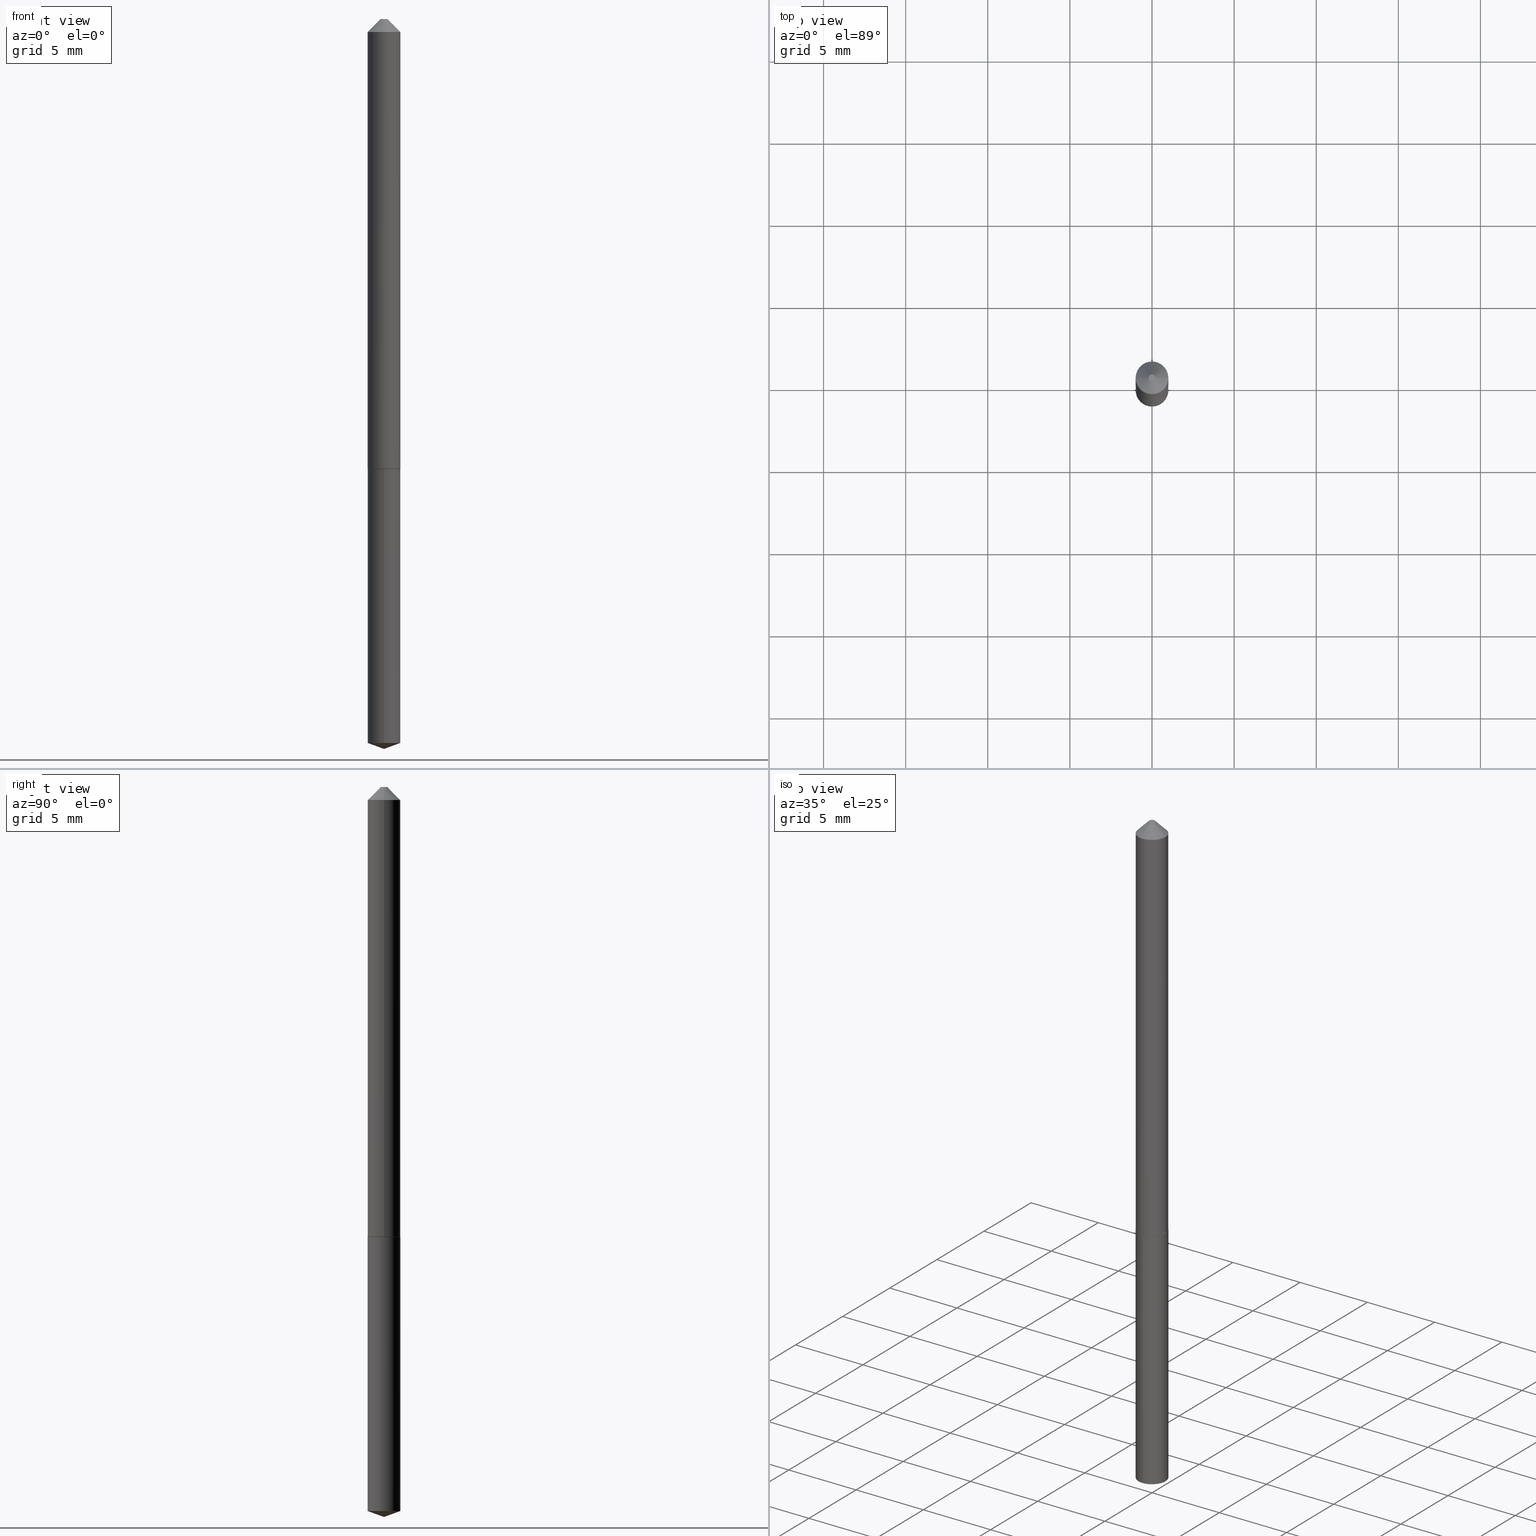
[diagram: canonical four-view strip — front | top / right | iso, engineering-drawing reading convention]
A machine part, canonical four-view strip (front | top / right | iso — engineering-drawing reading convention). The complete STEP part file that produces these views, byte-faithful:
ISO-10303-21;
HEADER;
FILE_DESCRIPTION (( 'STEP AP203' ),
    '1' );
FILE_NAME ('56256.STEP',
    '2024-04-22T21:34:05',
    ( '' ),
    ( '' ),
    'SwSTEP 2.0',
    'SolidWorks 2023',
    '' );
FILE_SCHEMA (( 'CONFIG_CONTROL_DESIGN' ));
ENDSEC;

DATA;
#1 = DIRECTION ( 'NONE',  ( -2.445483709436651737E-29, 3.491459996538735654E-15, 1.000000000000000000 ) ) ;
#2 = ORIENTED_EDGE ( 'NONE', *, *, #13, .F. ) ;
#3 = EDGE_LOOP ( 'NONE', ( #8, #131, #60, #136 ) ) ;
#4 = EDGE_CURVE ( 'NONE', #39, #163, #63, .T. ) ;
#5 = DIRECTION ( 'NONE',  ( 1.000000000000000000, -6.982962677686266711E-15, 4.876176775795935232E-29 ) ) ;
#6 = DIRECTION ( 'NONE',  ( -0.7071067811866441621, 7.493145998870704414E-15, 0.7071067811864508723 ) ) ;
#7 = ADVANCED_FACE ( 'NONE', ( #259 ), #76, .T. ) ;
#8 = ORIENTED_EDGE ( 'NONE', *, *, #168, .F. ) ;
#9 = AXIS2_PLACEMENT_3D ( 'NONE', #319, #384, #83 ) ;
#10 = CARTESIAN_POINT ( 'NONE',  ( 4.279596773399363375E-29, -6.110054993942786605E-15, -1.750000000000000000 ) ) ;
#11 = FACE_OUTER_BOUND ( 'NONE', #66, .T. ) ;
#12 =( NAMED_UNIT ( * ) PLANE_ANGLE_UNIT ( ) SI_UNIT ( $, .RADIAN. ) );
#13 = EDGE_CURVE ( 'NONE', #279, #137, #253, .T. ) ;
#14 = DIRECTION ( 'NONE',  ( 1.000000000000000000, -6.982962677686266711E-15, 4.876357825096174133E-29 ) ) ;
#15 = FACE_OUTER_BOUND ( 'NONE', #109, .T. ) ;
#16 = ORIENTED_EDGE ( 'NONE', *, *, #341, .T. ) ;
#17 = DIRECTION ( 'NONE',  ( -2.445468806185136597E-29, 3.491481338843145583E-15, 1.000000000000000000 ) ) ;
#18 = FACE_OUTER_BOUND ( 'NONE', #114, .T. ) ;
#19 =( NAMED_UNIT ( * ) SI_UNIT ( $, .STERADIAN. ) SOLID_ANGLE_UNIT ( ) );
#20 = DATE_TIME_ROLE ( 'creation_date' ) ;
#21 = ADVANCED_FACE ( 'NONE', ( #291 ), #251, .T. ) ;
#22 = LINE ( 'NONE', #267, #371 ) ;
#23 = COORDINATED_UNIVERSAL_TIME_OFFSET ( 5, 0, .BEHIND. ) ;
#24 = CARTESIAN_POINT ( 'NONE',  ( 2.788880237858818240E-16, 0.03924999999999623235, -1.078500000000000014 ) ) ;
#25 = APPROVAL_PERSON_ORGANIZATION ( #179, #141, #62 ) ;
#26 = ORIENTED_EDGE ( 'NONE', *, *, #152, .T. ) ;
#27 = EDGE_CURVE ( 'NONE', #237, #279, #213, .T. ) ;
#28 = FACE_OUTER_BOUND ( 'NONE', #38, .T. ) ;
#29 = PERSON_AND_ORGANIZATION_ROLE ( 'creator' ) ;
#30 = DIRECTION ( 'NONE',  ( -2.445483709436651737E-29, 3.491459996538735654E-15, 1.000000000000000000 ) ) ;
#31 = PERSON_AND_ORGANIZATION ( #187, #262 ) ;
#32 = ORIENTED_EDGE ( 'NONE', *, *, #168, .T. ) ;
#33 = EDGE_CURVE ( 'NONE', #279, #237, #160, .T. ) ;
#34 = EDGE_LOOP ( 'NONE', ( #255, #245 ) ) ;
#35 = EDGE_LOOP ( 'NONE', ( #316, #133, #159 ) ) ;
#36 = EDGE_CURVE ( 'NONE', #147, #69, #138, .T. ) ;
#37 = ADVANCED_BREP_SHAPE_REPRESENTATION ( '56256', ( #342, #166, #217 ), #377 ) ;
#38 = EDGE_LOOP ( 'NONE', ( #302, #264, #26, #367 ) ) ;
#39 = VERTEX_POINT ( 'NONE', #44 ) ;
#40 = CARTESIAN_POINT ( 'NONE',  ( 2.636215373067577193E-29, -3.763816883272910789E-15, -1.077999999999999847 ) ) ;
#41 = DIRECTION ( 'NONE',  ( 1.000000000000000000, -6.982962677686265922E-15, 4.876176775795935793E-29 ) ) ;
#42 = LENGTH_MEASURE_WITH_UNIT ( LENGTH_MEASURE( 0.02539999999999999897 ), #110 );
#43 = EDGE_CURVE ( 'NONE', #309, #260, #224, .T. ) ;
#44 = CARTESIAN_POINT ( 'NONE',  ( 4.279596491514139628E-29, -6.110054993942786605E-15, -1.750000000000000000 ) ) ;
#45 = ORIENTED_EDGE ( 'NONE', *, *, #33, .F. ) ;
#46 = AXIS2_PLACEMENT_3D ( 'NONE', #307, #169, #145 ) ;
#47 = CIRCLE ( 'NONE', #278, 0.03925000000000000017 ) ;
#48 = CARTESIAN_POINT ( 'NONE',  ( 2.788880237858818240E-16, 0.03924999999999394251, -1.735714168305051652 ) ) ;
#49 = ADVANCED_FACE ( 'NONE', ( #282 ), #380, .F. ) ;
#50 = CARTESIAN_POINT ( 'NONE',  ( 4.244644649671631606E-29, -6.060199601737895499E-15, -1.735714168305051652 ) ) ;
#51 = APPROVAL_ROLE ( '' ) ;
#52 = FACE_OUTER_BOUND ( 'NONE', #107, .T. ) ;
#53 = AXIS2_PLACEMENT_3D ( 'NONE', #272, #303, #386 ) ;
#54 = FACE_OUTER_BOUND ( 'NONE', #35, .T. ) ;
#55 = CIRCLE ( 'NONE', #353, 0.03875000000000009687 ) ;
#56 = DIRECTION ( 'NONE',  ( 1.000000000000000000, 0.000000000000000000, 0.000000000000000000 ) ) ;
#57 = CARTESIAN_POINT ( 'NONE',  ( 0.03925000000000013201, -4.037898168372097104E-15, -1.077999999999999847 ) ) ;
#58 = LINE ( 'NONE', #84, #305 ) ;
#59 = DATE_AND_TIME ( #328, #104 ) ;
#60 = ORIENTED_EDGE ( 'NONE', *, *, #212, .T. ) ;
#61 = CIRCLE ( 'NONE', #153, 0.03925000000000000017 ) ;
#62 = APPROVAL_ROLE ( '' ) ;
#63 = LINE ( 'NONE', #10, #205 ) ;
#64 = APPROVAL_DATE_TIME ( #339, #141 ) ;
#65 = AXIS2_PLACEMENT_3D ( 'NONE', #194, #246, #75 ) ;
#66 = EDGE_LOOP ( 'NONE', ( #180, #195, #344, #146 ) ) ;
#67 = ORIENTED_EDGE ( 'NONE', *, *, #135, .F. ) ;
#68 = DIRECTION ( 'NONE',  ( -2.445468806185136597E-29, 3.491481338843145583E-15, 1.000000000000000000 ) ) ;
#69 = VERTEX_POINT ( 'NONE', #202 ) ;
#70 = CARTESIAN_POINT ( 'NONE',  ( 3.743544432386673062E-48, -5.344789307371237567E-34, -1.530808498934197508E-19 ) ) ;
#71 = ADVANCED_FACE ( 'NONE', ( #11 ), #362, .T. ) ;
#72 = CONICAL_SURFACE ( 'NONE', #298, 0.03925000000000000017, 0.7853981633974450594 ) ;
#73 = CC_DESIGN_APPROVAL ( #141, ( #199 ) ) ;
#74 = DIRECTION ( 'NONE',  ( 1.000000000000000000, -6.982962677686266711E-15, 0.000000000000000000 ) ) ;
#75 = DIRECTION ( 'NONE',  ( -1.000000000000000000, 6.982962677686265922E-15, -4.876176775795935793E-29 ) ) ;
#76 = CYLINDRICAL_SURFACE ( 'NONE', #221, 0.03925000000000000017 ) ;
#77 = CC_DESIGN_DATE_AND_TIME_ASSIGNMENT ( #150, #92, ( #199 ) ) ;
#78 = DIRECTION ( 'NONE',  ( -1.000000000000000000, 6.982962677686266711E-15, 0.000000000000000000 ) ) ;
#79 = CLOSED_SHELL ( 'NONE', ( #258, #95, #71, #49, #21, #266, #184, #346 ) ) ;
#80 = AXIS2_PLACEMENT_3D ( 'NONE', #269, #1, #236 ) ;
#81 = LOCAL_TIME ( 17, 34, 5.000000000000000000, #132 ) ;
#82 = CYLINDRICAL_SURFACE ( 'NONE', #80, 0.03925000000000000017 ) ;
#83 = DIRECTION ( 'NONE',  ( -6.982962677686266711E-15, -1.000000000000000000, 3.475157955500665783E-15 ) ) ;
#84 = CARTESIAN_POINT ( 'NONE',  ( 2.788880237858656524E-16, 0.03924999999999623235, -1.078500000000000014 ) ) ;
#85 = PERSON_AND_ORGANIZATION ( #187, #262 ) ;
#86 = DIRECTION ( 'NONE',  ( -2.445468806185136597E-29, 3.491481338843145583E-15, 1.000000000000000000 ) ) ;
#87 = SECURITY_CLASSIFICATION_LEVEL ( 'unclassified' ) ;
#88 = ADVANCED_FACE ( 'NONE', ( #118 ), #283, .T. ) ;
#89 = AXIS2_PLACEMENT_3D ( 'NONE', #70, #265, #14 ) ;
#90 = DIRECTION ( 'NONE',  ( 1.000000000000000000, -6.982962677686271444E-15, 0.000000000000000000 ) ) ;
#91 = PRODUCT_DEFINITION_FORMATION_WITH_SPECIFIED_SOURCE ( 'ANY', '', #372, .NOT_KNOWN. ) ;
#92 = DATE_TIME_ROLE ( 'classification_date' ) ;
#93 = APPROVAL_ROLE ( '' ) ;
#94 = ORIENTED_EDGE ( 'NONE', *, *, #13, .T. ) ;
#95 = ADVANCED_FACE ( 'NONE', ( #144 ), #376, .T. ) ;
#96 = ORIENTED_EDGE ( 'NONE', *, *, #389, .T. ) ;
#97 = CIRCLE ( 'NONE', #53, 0.03925000000000013201 ) ;
#98 = APPROVAL_PERSON_ORGANIZATION ( #209, #127, #51 ) ;
#99 = EDGE_CURVE ( 'NONE', #151, #137, #336, .T. ) ;
#100 = CARTESIAN_POINT ( 'NONE',  ( -0.03925000000000013201, -3.484928859487070232E-15, -1.077999999999999847 ) ) ;
#101 = EDGE_LOOP ( 'NONE', ( #231, #161, #105 ) ) ;
#102 = VERTEX_POINT ( 'NONE', #100 ) ;
#103 = DIRECTION ( 'NONE',  ( -2.445468806185136597E-29, 3.491481338843145583E-15, 1.000000000000000000 ) ) ;
#104 = LOCAL_TIME ( 17, 34, 5.000000000000000000, #273 ) ;
#105 = ORIENTED_EDGE ( 'NONE', *, *, #327, .F. ) ;
#106 = PRODUCT_DEFINITION_SHAPE ( 'NONE', 'NONE',  #357 ) ;
#107 = EDGE_LOOP ( 'NONE', ( #45, #94, #96, #335 ) ) ;
#108 = APPLICATION_PROTOCOL_DEFINITION ( 'international standard', 'config_control_design', 1994, #188 ) ;
#109 = EDGE_LOOP ( 'NONE', ( #340, #140 ) ) ;
#110 =( LENGTH_UNIT ( ) NAMED_UNIT ( * ) SI_UNIT ( $, .METRE. ) );
#111 = DIRECTION ( 'NONE',  ( 1.000000000000000000, -6.982962677686265922E-15, 0.000000000000000000 ) ) ;
#112 =( CONVERSION_BASED_UNIT ( 'INCH', #42 ) LENGTH_UNIT ( ) NAMED_UNIT ( #374 ) );
#113 = VECTOR ( 'NONE', #203, 39.37007874015748143 ) ;
#114 = EDGE_LOOP ( 'NONE', ( #2, #226, #257, #250 ) ) ;
#115 = DIRECTION ( 'NONE',  ( 0.7071067811865452413, -7.319954787623248157E-15, -0.7071067811865497932 ) ) ;
#116 = LINE ( 'NONE', #348, #235 ) ;
#117 = EDGE_CURVE ( 'NONE', #39, #277, #197, .T. ) ;
#118 = FACE_OUTER_BOUND ( 'NONE', #101, .T. ) ;
#119 = CARTESIAN_POINT ( 'NONE',  ( 7.642090019328601786E-31, -1.091087918388490144E-16, -0.03125000000000020123 ) ) ;
#120 = PERSON_AND_ORGANIZATION ( #187, #262 ) ;
#121 = AXIS2_PLACEMENT_3D ( 'NONE', #378, #175, #320 ) ;
#122 = CIRCLE ( 'NONE', #331, 0.03875000000000009687 ) ;
#123 = CARTESIAN_POINT ( 'NONE',  ( -2.740812850991435691E-16, -0.03925000000000607864, -1.735714168305051430 ) ) ;
#124 = FACE_OUTER_BOUND ( 'NONE', #34, .T. ) ;
#125 = CARTESIAN_POINT ( 'NONE',  ( 0.000000000000000000, 0.000000000000000000, 0.000000000000000000 ) ) ;
#126 = CARTESIAN_POINT ( 'NONE',  ( -0.007999999999999998432, 1.104180973409135397E-16, -1.530808498940009002E-19 ) ) ;
#127 = APPROVAL ( #129, 'UNSPECIFIED' ) ;
#128 = DIRECTION ( 'NONE',  ( -0.7071067811865452413, 2.468850131082233000E-15, -0.7071067811865497932 ) ) ;
#129 = APPROVAL_STATUS ( 'not_yet_approved' ) ;
#130 = LOCAL_TIME ( 17, 34, 5.000000000000000000, #23 ) ;
#131 = ORIENTED_EDGE ( 'NONE', *, *, #192, .T. ) ;
#132 = COORDINATED_UNIVERSAL_TIME_OFFSET ( 5, 0, .BEHIND. ) ;
#133 = ORIENTED_EDGE ( 'NONE', *, *, #117, .T. ) ;
#134 = CARTESIAN_POINT ( 'NONE',  ( 7.642090019328601786E-31, -1.091087918388490144E-16, -0.03125000000000020123 ) ) ;
#135 = EDGE_CURVE ( 'NONE', #69, #147, #287, .T. ) ;
#136 = ORIENTED_EDGE ( 'NONE', *, *, #99, .F. ) ;
#137 = VERTEX_POINT ( 'NONE', #317 ) ;
#138 = CIRCLE ( 'NONE', #46, 0.03925000000000000017 ) ;
#139 = CIRCLE ( 'NONE', #229, 0.03925000000000013201 ) ;
#140 = ORIENTED_EDGE ( 'NONE', *, *, #36, .T. ) ;
#141 = APPROVAL ( #306, 'UNSPECIFIED' ) ;
#142 = DIRECTION ( 'NONE',  ( -6.982962677686264344E-15, -1.000000000000000000, 3.480061138425812861E-15 ) ) ;
#143 = PLANE ( 'NONE',  #365 ) ;
#144 = FACE_OUTER_BOUND ( 'NONE', #247, .T. ) ;
#145 = DIRECTION ( 'NONE',  ( -6.982962677686264344E-15, -1.000000000000000000, 3.480061138425812861E-15 ) ) ;
#146 = ORIENTED_EDGE ( 'NONE', *, *, #43, .F. ) ;
#147 = VERTEX_POINT ( 'NONE', #24 ) ;
#148 = CARTESIAN_POINT ( 'NONE',  ( 0.03925000000000006956, -2.740812850991864634E-16, 1.913899384499908036E-30 ) ) ;
#149 = DIRECTION ( 'NONE',  ( -2.445483709436651456E-29, 3.491459996538735654E-15, 1.000000000000000000 ) ) ;
#150 = DATE_AND_TIME ( #243, #130 ) ;
#151 = VERTEX_POINT ( 'NONE', #381 ) ;
#152 = EDGE_CURVE ( 'NONE', #277, #69, #326, .T. ) ;
#153 = AXIS2_PLACEMENT_3D ( 'NONE', #368, #103, #223 ) ;
#154 = DIRECTION ( 'NONE',  ( -2.445468806185136597E-29, 3.491481338843145583E-15, 1.000000000000000000 ) ) ;
#155 = PERSON_AND_ORGANIZATION_ROLE ( 'creator' ) ;
#156 = DIRECTION ( 'NONE',  ( -2.445468806185136877E-29, 3.491481338843145188E-15, 1.000000000000000000 ) ) ;
#157 = DIRECTION ( 'NONE',  ( -1.000000000000000000, 6.982962677686266711E-15, 0.000000000000000000 ) ) ;
#158 = CC_DESIGN_PERSON_AND_ORGANIZATION_ASSIGNMENT ( #120, #321, ( #199 ) ) ;
#159 = ORIENTED_EDGE ( 'NONE', *, *, #220, .F. ) ;
#160 = CIRCLE ( 'NONE', #204, 0.007999999999999998432 ) ;
#161 = ORIENTED_EDGE ( 'NONE', *, *, #4, .T. ) ;
#162 = PLANE ( 'NONE',  #65 ) ;
#163 = VERTEX_POINT ( 'NONE', #48 ) ;
#164 = CARTESIAN_POINT ( 'NONE',  ( 3.743544432386673062E-48, -5.344789307371237567E-34, -1.530808498934197508E-19 ) ) ;
#165 = AXIS2_PLACEMENT_3D ( 'NONE', #227, #315, #5 ) ;
#166 = MANIFOLD_SOLID_BREP ( 'Body-Move/Copy2[2]', #79 ) ;
#167 = EDGE_LOOP ( 'NONE', ( #281, #196, #355, #343 ) ) ;
#168 = EDGE_CURVE ( 'NONE', #102, #151, #300, .T. ) ;
#169 = DIRECTION ( 'NONE',  ( -2.445483709436651737E-29, 3.491459996538735654E-15, 1.000000000000000000 ) ) ;
#170 = DIRECTION ( 'NONE',  ( -2.445483709436651737E-29, 3.491459996538735654E-15, 1.000000000000000000 ) ) ;
#171 = ORIENTED_EDGE ( 'NONE', *, *, #292, .F. ) ;
#172 = DIRECTION ( 'NONE',  ( -2.445483709436651737E-29, 3.491459996538735654E-15, 1.000000000000000000 ) ) ;
#173 = CARTESIAN_POINT ( 'NONE',  ( 2.637438107470669995E-29, -3.765562623942332293E-15, -1.078500000000000014 ) ) ;
#174 = VECTOR ( 'NONE', #290, 39.37007874015748143 ) ;
#175 = DIRECTION ( 'NONE',  ( -2.445483709436651737E-29, 3.491459996538735654E-15, 1.000000000000000000 ) ) ;
#176 = LINE ( 'NONE', #148, #113 ) ;
#177 = CC_DESIGN_PERSON_AND_ORGANIZATION_ASSIGNMENT ( #31, #268, ( #91 ) ) ;
#178 = CARTESIAN_POINT ( 'NONE',  ( 0.007999999999999998432, -2.166336611167769862E-16, -1.530808498924677396E-19 ) ) ;
#179 = PERSON_AND_ORGANIZATION ( #187, #262 ) ;
#180 = ORIENTED_EDGE ( 'NONE', *, *, #292, .T. ) ;
#181 = AXIS2_PLACEMENT_3D ( 'NONE', #191, #68, #219 ) ;
#182 = DIRECTION ( 'NONE',  ( -6.982962677686264344E-15, -1.000000000000000000, 6.960122276851625723E-15 ) ) ;
#183 = ORIENTED_EDGE ( 'NONE', *, *, #212, .F. ) ;
#184 = ADVANCED_FACE ( 'NONE', ( #18 ), #72, .T. ) ;
#185 = CARTESIAN_POINT ( 'NONE',  ( -2.740812850991594942E-16, -0.03925000000000376105, -1.078499999999999792 ) ) ;
#186 = COORDINATED_UNIVERSAL_TIME_OFFSET ( 5, 0, .BEHIND. ) ;
#187 = PERSON ( 'UNSPECIFIED', 'UNSPECIFIED', 'UNSPECIFIED', ('UNSPECIFIED'), ('UNSPECIFIED'), ('UNSPECIFIED') ) ;
#188 = APPLICATION_CONTEXT ( 'configuration controlled 3d designs of mechanical parts and assemblies' ) ;
#189 = AXIS2_PLACEMENT_3D ( 'NONE', #289, #314, #41 ) ;
#190 = CONICAL_SURFACE ( 'NONE', #9, 108.1684023407351560, 1.221730476396036602 ) ;
#191 = CARTESIAN_POINT ( 'NONE',  ( 2.636215373067577193E-29, -3.763816883272910789E-15, -1.077999999999999847 ) ) ;
#192 = EDGE_CURVE ( 'NONE', #102, #260, #97, .T. ) ;
#193 = CLOSED_SHELL ( 'NONE', ( #7, #88, #322, #304, #364 ) ) ;
#194 = CARTESIAN_POINT ( 'NONE',  ( 1.871772216193336531E-48, -2.672394653685618784E-34, -7.654042494670987541E-20 ) ) ;
#195 = ORIENTED_EDGE ( 'NONE', *, *, #370, .T. ) ;
#196 = ORIENTED_EDGE ( 'NONE', *, *, #312, .T. ) ;
#197 = LINE ( 'NONE', #200, #174 ) ;
#198 = DIRECTION ( 'NONE',  ( 0.7071067811866441621, -2.468850131083269169E-15, 0.7071067811864508723 ) ) ;
#199 = SECURITY_CLASSIFICATION ( '', '', #87 ) ;
#200 = CARTESIAN_POINT ( 'NONE',  ( 4.279564345200622166E-29, -6.110101029293398590E-15, -1.750000000000000000 ) ) ;
#201 = CC_DESIGN_PERSON_AND_ORGANIZATION_ASSIGNMENT ( #85, #155, ( #357 ) ) ;
#202 = CARTESIAN_POINT ( 'NONE',  ( -2.740812850991594942E-16, -0.03925000000000376105, -1.078499999999999792 ) ) ;
#203 = DIRECTION ( 'NONE',  ( -2.445468806185136877E-29, 3.491481338843145188E-15, 1.000000000000000000 ) ) ;
#204 = AXIS2_PLACEMENT_3D ( 'NONE', #164, #17, #288 ) ;
#205 = VECTOR ( 'NONE', #347, 39.37007874015748143 ) ;
#206 = CARTESIAN_POINT ( 'NONE',  ( 2.637438107470669434E-29, -3.765562623942332293E-15, -1.078499999999999792 ) ) ;
#207 = CC_DESIGN_PERSON_AND_ORGANIZATION_ASSIGNMENT ( #301, #240, ( #372 ) ) ;
#208 = CARTESIAN_POINT ( 'NONE',  ( 7.642090019328601786E-31, -1.091087918388490144E-16, -0.03125000000000020123 ) ) ;
#209 = PERSON_AND_ORGANIZATION ( #187, #262 ) ;
#210 = DIRECTION ( 'NONE',  ( 1.000000000000000000, -6.982962677686271444E-15, 0.000000000000000000 ) ) ;
#211 = MECHANICAL_CONTEXT ( 'NONE', #188, 'mechanical' ) ;
#212 = EDGE_CURVE ( 'NONE', #260, #137, #176, .T. ) ;
#213 = CIRCLE ( 'NONE', #89, 0.007999999999999998432 ) ;
#214 = DIRECTION ( 'NONE',  ( -2.445483709436651737E-29, 3.491459996538735654E-15, 1.000000000000000000 ) ) ;
#215 = CALENDAR_DATE ( 2024, 22, 4 ) ;
#216 = VECTOR ( 'NONE', #149, 39.37007874015748143 ) ;
#217 = AXIS2_PLACEMENT_3D ( 'NONE', #125, #358, #56 ) ;
#218 = SHAPE_DEFINITION_REPRESENTATION ( #106, #37 ) ;
#219 = DIRECTION ( 'NONE',  ( 1.000000000000000000, -6.982962677686265922E-15, 0.000000000000000000 ) ) ;
#220 = EDGE_CURVE ( 'NONE', #163, #277, #324, .T. ) ;
#221 = AXIS2_PLACEMENT_3D ( 'NONE', #173, #170, #142 ) ;
#222 = APPROVAL_PERSON_ORGANIZATION ( #390, #334, #93 ) ;
#223 = DIRECTION ( 'NONE',  ( 1.000000000000000000, -6.982962677686266711E-15, 0.000000000000000000 ) ) ;
#224 = LINE ( 'NONE', #373, #351 ) ;
#225 = DIRECTION ( 'NONE',  ( -2.445483709436651456E-29, 3.491459996538735654E-15, 1.000000000000000000 ) ) ;
#226 = ORIENTED_EDGE ( 'NONE', *, *, #27, .F. ) ;
#227 = CARTESIAN_POINT ( 'NONE',  ( 0.000000000000000000, 0.000000000000000000, 0.000000000000000000 ) ) ;
#228 = AXIS2_PLACEMENT_3D ( 'NONE', #333, #172, #332 ) ;
#229 = AXIS2_PLACEMENT_3D ( 'NONE', #352, #154, #233 ) ;
#230 = ORIENTED_EDGE ( 'NONE', *, *, #312, .F. ) ;
#231 = ORIENTED_EDGE ( 'NONE', *, *, #117, .F. ) ;
#232 = CARTESIAN_POINT ( 'NONE',  ( -0.03925000000000006956, 2.788880237858398172E-16, -1.930682022925053676E-30 ) ) ;
#233 = DIRECTION ( 'NONE',  ( 1.000000000000000000, -6.982962677686265922E-15, 0.000000000000000000 ) ) ;
#234 = AXIS2_PLACEMENT_3D ( 'NONE', #134, #345, #74 ) ;
#235 = VECTOR ( 'NONE', #6, 39.37007874015748143 ) ;
#236 = DIRECTION ( 'NONE',  ( -6.982962677686264344E-15, -1.000000000000000000, 3.480061138425812861E-15 ) ) ;
#237 = VERTEX_POINT ( 'NONE', #126 ) ;
#238 = DIRECTION ( 'NONE',  ( 2.445468806185136597E-29, -3.491481338843145583E-15, -1.000000000000000000 ) ) ;
#239 = EDGE_CURVE ( 'NONE', #237, #151, #22, .T. ) ;
#240 = PERSON_AND_ORGANIZATION_ROLE ( 'design_owner' ) ;
#241 = APPLICATION_CONTEXT ( 'configuration controlled 3d designs of mechanical parts and assemblies' ) ;
#242 = DIRECTION ( 'NONE',  ( -2.445468806185136597E-29, 3.491481338843145583E-15, 1.000000000000000000 ) ) ;
#243 = CALENDAR_DATE ( 2024, 22, 4 ) ;
#244 = CALENDAR_DATE ( 2024, 22, 4 ) ;
#245 = ORIENTED_EDGE ( 'NONE', *, *, #33, .T. ) ;
#246 = DIRECTION ( 'NONE',  ( 2.438088387897960049E-29, -3.491481338843145188E-15, -1.000000000000000000 ) ) ;
#247 = EDGE_LOOP ( 'NONE', ( #369, #32, #310, #183 ) ) ;
#248 = PRODUCT_RELATED_PRODUCT_CATEGORY ( 'detail', '', ( #372 ) ) ;
#249 = CALENDAR_DATE ( 2024, 22, 4 ) ;
#250 = ORIENTED_EDGE ( 'NONE', *, *, #99, .T. ) ;
#251 = CONICAL_SURFACE ( 'NONE', #330, 0.03925000000000013201, 0.7853981633975849475 ) ;
#252 = AXIS2_PLACEMENT_3D ( 'NONE', #119, #238, #157 ) ;
#253 = LINE ( 'NONE', #366, #318 ) ;
#254 = ORIENTED_EDGE ( 'NONE', *, *, #327, .T. ) ;
#255 = ORIENTED_EDGE ( 'NONE', *, *, #27, .T. ) ;
#256 = CC_DESIGN_APPROVAL ( #127, ( #91 ) ) ;
#257 = ORIENTED_EDGE ( 'NONE', *, *, #239, .T. ) ;
#258 = ADVANCED_FACE ( 'NONE', ( #52 ), #308, .T. ) ;
#259 = FACE_OUTER_BOUND ( 'NONE', #286, .T. ) ;
#260 = VERTEX_POINT ( 'NONE', #57 ) ;
#261 = DIRECTION ( 'NONE',  ( 2.445483709436651176E-29, -3.491459996538735654E-15, -1.000000000000000000 ) ) ;
#262 = ORGANIZATION ( 'UNSPECIFIED', 'UNSPECIFIED', '' ) ;
#263 = UNCERTAINTY_MEASURE_WITH_UNIT (LENGTH_MEASURE( 1.000000000000000082E-05 ), #112, 'distance_accuracy_value', 'NONE');
#264 = ORIENTED_EDGE ( 'NONE', *, *, #220, .T. ) ;
#265 = DIRECTION ( 'NONE',  ( -2.445468806185136597E-29, 3.491481338843145583E-15, 1.000000000000000000 ) ) ;
#266 = ADVANCED_FACE ( 'NONE', ( #295 ), #276, .T. ) ;
#267 = CARTESIAN_POINT ( 'NONE',  ( -0.03925000000000000017, 1.649724932603369437E-16, -0.03125000000000020123 ) ) ;
#268 = PERSON_AND_ORGANIZATION_ROLE ( 'design_supplier' ) ;
#269 = CARTESIAN_POINT ( 'NONE',  ( 2.637438107470669995E-29, -3.765562623942332293E-15, -1.078500000000000014 ) ) ;
#270 = VECTOR ( 'NONE', #156, 39.37007874015748143 ) ;
#271 = CC_DESIGN_APPROVAL ( #334, ( #357 ) ) ;
#272 = CARTESIAN_POINT ( 'NONE',  ( 2.636215373067577193E-29, -3.763816883272910789E-15, -1.077999999999999847 ) ) ;
#273 = COORDINATED_UNIVERSAL_TIME_OFFSET ( 5, 0, .BEHIND. ) ;
#274 = DIRECTION ( 'NONE',  ( 1.000000000000000000, -6.982962677686266711E-15, 4.876176775795935232E-29 ) ) ;
#275 = EDGE_CURVE ( 'NONE', #260, #102, #139, .T. ) ;
#276 = CYLINDRICAL_SURFACE ( 'NONE', #385, 0.03925000000000006956 ) ;
#277 = VERTEX_POINT ( 'NONE', #123 ) ;
#278 = AXIS2_PLACEMENT_3D ( 'NONE', #50, #214, #182 ) ;
#279 = VERTEX_POINT ( 'NONE', #178 ) ;
#280 = CC_DESIGN_DATE_AND_TIME_ASSIGNMENT ( #59, #20, ( #357 ) ) ;
#281 = ORIENTED_EDGE ( 'NONE', *, *, #370, .F. ) ;
#282 = FACE_OUTER_BOUND ( 'NONE', #375, .T. ) ;
#283 = CONICAL_SURFACE ( 'NONE', #228, 108.1684023407351560, 1.221730476396036602 ) ;
#284 = CC_DESIGN_SECURITY_CLASSIFICATION ( #199, ( #91 ) ) ;
#285 = VERTEX_POINT ( 'NONE', #388 ) ;
#286 = EDGE_LOOP ( 'NONE', ( #254, #16, #67, #329 ) ) ;
#287 = CIRCLE ( 'NONE', #121, 0.03925000000000000017 ) ;
#288 = DIRECTION ( 'NONE',  ( 1.000000000000000000, -6.982962677686266711E-15, 4.876357825096174133E-29 ) ) ;
#289 = CARTESIAN_POINT ( 'NONE',  ( 2.637438107470669995E-29, -3.765562623942332293E-15, -1.078500000000000014 ) ) ;
#290 = DIRECTION ( 'NONE',  ( -6.561838499445214262E-15, -0.9396926207859092051, 0.3420201433256664925 ) ) ;
#291 = FACE_OUTER_BOUND ( 'NONE', #167, .T. ) ;
#292 = EDGE_CURVE ( 'NONE', #309, #285, #122, .T. ) ;
#293 = CARTESIAN_POINT ( 'NONE',  ( 4.244644649671631606E-29, -6.060199601737895499E-15, -1.735714168305051652 ) ) ;
#294 = DATE_AND_TIME ( #215, #313 ) ;
#295 = FACE_OUTER_BOUND ( 'NONE', #3, .T. ) ;
#296 = APPROVAL_DATE_TIME ( #387, #334 ) ;
#297 = CARTESIAN_POINT ( 'NONE',  ( 2.637438107470669434E-29, -3.765562623942332293E-15, -1.078499999999999792 ) ) ;
#298 = AXIS2_PLACEMENT_3D ( 'NONE', #208, #359, #78 ) ;
#299 = LOCAL_TIME ( 17, 34, 5.000000000000000000, #354 ) ;
#300 = LINE ( 'NONE', #232, #270 ) ;
#301 = PERSON_AND_ORGANIZATION ( #187, #262 ) ;
#302 = ORIENTED_EDGE ( 'NONE', *, *, #341, .F. ) ;
#303 = DIRECTION ( 'NONE',  ( -2.445468806185136597E-29, 3.491481338843145583E-15, 1.000000000000000000 ) ) ;
#304 = ADVANCED_FACE ( 'NONE', ( #28 ), #82, .T. ) ;
#305 = VECTOR ( 'NONE', #225, 39.37007874015748143 ) ;
#306 = APPROVAL_STATUS ( 'not_yet_approved' ) ;
#307 = CARTESIAN_POINT ( 'NONE',  ( 2.637438107470669995E-29, -3.765562623942332293E-15, -1.078500000000000014 ) ) ;
#308 = CONICAL_SURFACE ( 'NONE', #252, 0.03925000000000000017, 0.7853981633974450594 ) ;
#309 = VERTEX_POINT ( 'NONE', #323 ) ;
#310 = ORIENTED_EDGE ( 'NONE', *, *, #389, .F. ) ;
#311 = DIRECTION ( 'NONE',  ( -2.445468806185136597E-29, 3.491481338843145583E-15, 1.000000000000000000 ) ) ;
#312 = EDGE_CURVE ( 'NONE', #285, #309, #55, .T. ) ;
#313 = LOCAL_TIME ( 17, 34, 5.000000000000000000, #186 ) ;
#314 = DIRECTION ( 'NONE',  ( -2.438088387897960049E-29, 3.491481338843145188E-15, 1.000000000000000000 ) ) ;
#315 = DIRECTION ( 'NONE',  ( -2.445468806185136597E-29, 3.491481338843145583E-15, 1.000000000000000000 ) ) ;
#316 = ORIENTED_EDGE ( 'NONE', *, *, #4, .F. ) ;
#317 = CARTESIAN_POINT ( 'NONE',  ( 0.03925000000000000017, -3.831900769380349724E-16, -0.03125000000000020123 ) ) ;
#318 = VECTOR ( 'NONE', #115, 39.37007874015748143 ) ;
#319 = CARTESIAN_POINT ( 'NONE',  ( -9.199930577993600191E-28, 1.313489769702218936E-13, 37.62007874015748143 ) ) ;
#320 = DIRECTION ( 'NONE',  ( -6.982962677686264344E-15, -1.000000000000000000, 3.480061138425812861E-15 ) ) ;
#321 = PERSON_AND_ORGANIZATION_ROLE ( 'classification_officer' ) ;
#322 = ADVANCED_FACE ( 'NONE', ( #54 ), #190, .T. ) ;
#323 = CARTESIAN_POINT ( 'NONE',  ( 0.03875000000000009687, -4.036152427702675601E-15, -1.078499999999999792 ) ) ;
#324 = CIRCLE ( 'NONE', #337, 0.03925000000000000017 ) ;
#325 = APPLICATION_PROTOCOL_DEFINITION ( 'international standard', 'config_control_design', 1994, #241 ) ;
#326 = LINE ( 'NONE', #185, #216 ) ;
#327 = EDGE_CURVE ( 'NONE', #277, #163, #47, .T. ) ;
#328 = CALENDAR_DATE ( 2024, 22, 4 ) ;
#329 = ORIENTED_EDGE ( 'NONE', *, *, #152, .F. ) ;
#330 = AXIS2_PLACEMENT_3D ( 'NONE', #40, #311, #111 ) ;
#331 = AXIS2_PLACEMENT_3D ( 'NONE', #297, #242, #210 ) ;
#332 = DIRECTION ( 'NONE',  ( -6.982962677686266711E-15, -1.000000000000000000, 3.475157955500665783E-15 ) ) ;
#333 = CARTESIAN_POINT ( 'NONE',  ( -9.199930577993600191E-28, 1.313489769702218936E-13, 37.62007874015748143 ) ) ;
#334 = APPROVAL ( #382, 'UNSPECIFIED' ) ;
#335 = ORIENTED_EDGE ( 'NONE', *, *, #239, .F. ) ;
#336 = CIRCLE ( 'NONE', #234, 0.03925000000000000017 ) ;
#337 = AXIS2_PLACEMENT_3D ( 'NONE', #293, #30, #350 ) ;
#338 = CARTESIAN_POINT ( 'NONE',  ( 2.637438107470669995E-29, -3.765562623942332293E-15, -1.078500000000000014 ) ) ;
#339 = DATE_AND_TIME ( #249, #81 ) ;
#340 = ORIENTED_EDGE ( 'NONE', *, *, #135, .T. ) ;
#341 = EDGE_CURVE ( 'NONE', #163, #147, #58, .T. ) ;
#342 = MANIFOLD_SOLID_BREP ( 'Body-Move/Copy2[1]', #193 ) ;
#343 = ORIENTED_EDGE ( 'NONE', *, *, #192, .F. ) ;
#344 = ORIENTED_EDGE ( 'NONE', *, *, #275, .F. ) ;
#345 = DIRECTION ( 'NONE',  ( -2.445468806185136597E-29, 3.491481338843145583E-15, 1.000000000000000000 ) ) ;
#346 = ADVANCED_FACE ( 'NONE', ( #124 ), #162, .F. ) ;
#347 = DIRECTION ( 'NONE',  ( 6.676917655467982329E-15, 0.9396926207859115365, 0.3420201433256599421 ) ) ;
#348 = CARTESIAN_POINT ( 'NONE',  ( -0.03925000000000013201, -3.484928859487070232E-15, -1.077999999999999847 ) ) ;
#349 = DESIGN_CONTEXT ( 'detailed design', #241, 'design' ) ;
#350 = DIRECTION ( 'NONE',  ( -6.982962677686264344E-15, -1.000000000000000000, 6.960122276851625723E-15 ) ) ;
#351 = VECTOR ( 'NONE', #198, 39.37007874015748143 ) ;
#352 = CARTESIAN_POINT ( 'NONE',  ( 2.636215373067577193E-29, -3.763816883272910789E-15, -1.077999999999999847 ) ) ;
#353 = AXIS2_PLACEMENT_3D ( 'NONE', #206, #361, #90 ) ;
#354 = COORDINATED_UNIVERSAL_TIME_OFFSET ( 5, 0, .BEHIND. ) ;
#355 = ORIENTED_EDGE ( 'NONE', *, *, #43, .T. ) ;
#356 = CARTESIAN_POINT ( 'NONE',  ( 0.000000000000000000, 0.000000000000000000, 0.000000000000000000 ) ) ;
#357 = PRODUCT_DEFINITION ( 'UNKNOWN', '', #91, #349 ) ;
#358 = DIRECTION ( 'NONE',  ( 0.000000000000000000, 0.000000000000000000, 1.000000000000000000 ) ) ;
#359 = DIRECTION ( 'NONE',  ( 2.445468806185136597E-29, -3.491481338843145583E-15, -1.000000000000000000 ) ) ;
#360 = PERSON_AND_ORGANIZATION ( #187, #262 ) ;
#361 = DIRECTION ( 'NONE',  ( -2.445468806185136597E-29, 3.491481338843145583E-15, 1.000000000000000000 ) ) ;
#362 = CONICAL_SURFACE ( 'NONE', #181, 0.03925000000000013201, 0.7853981633975849475 ) ;
#363 = APPROVAL_DATE_TIME ( #294, #127 ) ;
#364 = ADVANCED_FACE ( 'NONE', ( #15 ), #143, .F. ) ;
#365 = AXIS2_PLACEMENT_3D ( 'NONE', #338, #261, #379 ) ;
#366 = CARTESIAN_POINT ( 'NONE',  ( 0.03925000000000000017, -3.783833382513816186E-16, -0.03125000000000020123 ) ) ;
#367 = ORIENTED_EDGE ( 'NONE', *, *, #36, .F. ) ;
#368 = CARTESIAN_POINT ( 'NONE',  ( 7.642090019328601786E-31, -1.091087918388490144E-16, -0.03125000000000020123 ) ) ;
#369 = ORIENTED_EDGE ( 'NONE', *, *, #275, .T. ) ;
#370 = EDGE_CURVE ( 'NONE', #285, #102, #116, .T. ) ;
#371 = VECTOR ( 'NONE', #128, 39.37007874015748143 ) ;
#372 = PRODUCT ( '56256', '56256', '', ( #211 ) ) ;
#373 = CARTESIAN_POINT ( 'NONE',  ( 0.03925000000000013201, -4.037898168372097104E-15, -1.077999999999999847 ) ) ;
#374 = DIMENSIONAL_EXPONENTS ( 1.000000000000000000, 0.000000000000000000, 0.000000000000000000, 0.000000000000000000, 0.000000000000000000, 0.000000000000000000, 0.000000000000000000 ) ;
#375 = EDGE_LOOP ( 'NONE', ( #171, #230 ) ) ;
#376 = CYLINDRICAL_SURFACE ( 'NONE', #165, 0.03925000000000006956 ) ;
#377 =( GEOMETRIC_REPRESENTATION_CONTEXT ( 3 ) GLOBAL_UNCERTAINTY_ASSIGNED_CONTEXT ( ( #263 ) ) GLOBAL_UNIT_ASSIGNED_CONTEXT ( ( #112, #12, #19 ) ) REPRESENTATION_CONTEXT ( 'NONE', 'WORKASPACE' ) );
#378 = CARTESIAN_POINT ( 'NONE',  ( 2.637438107470669995E-29, -3.765562623942332293E-15, -1.078500000000000014 ) ) ;
#379 = DIRECTION ( 'NONE',  ( 6.982962677686265922E-15, 1.000000000000000000, -3.491459996538735654E-15 ) ) ;
#380 = PLANE ( 'NONE',  #189 ) ;
#381 = CARTESIAN_POINT ( 'NONE',  ( -0.03925000000000000017, -1.657574813770038402E-15, -0.03125000000000020123 ) ) ;
#382 = APPROVAL_STATUS ( 'not_yet_approved' ) ;
#383 = CC_DESIGN_PERSON_AND_ORGANIZATION_ASSIGNMENT ( #360, #29, ( #91 ) ) ;
#384 = DIRECTION ( 'NONE',  ( -2.445483709436651737E-29, 3.491459996538735654E-15, 1.000000000000000000 ) ) ;
#385 = AXIS2_PLACEMENT_3D ( 'NONE', #356, #86, #274 ) ;
#386 = DIRECTION ( 'NONE',  ( 1.000000000000000000, -6.982962677686265922E-15, 0.000000000000000000 ) ) ;
#387 = DATE_AND_TIME ( #244, #299 ) ;
#388 = CARTESIAN_POINT ( 'NONE',  ( -0.03875000000000009687, -3.487578086661181433E-15, -1.078499999999999792 ) ) ;
#389 = EDGE_CURVE ( 'NONE', #137, #151, #61, .T. ) ;
#390 = PERSON_AND_ORGANIZATION ( #187, #262 ) ;
ENDSEC;
END-ISO-10303-21;
